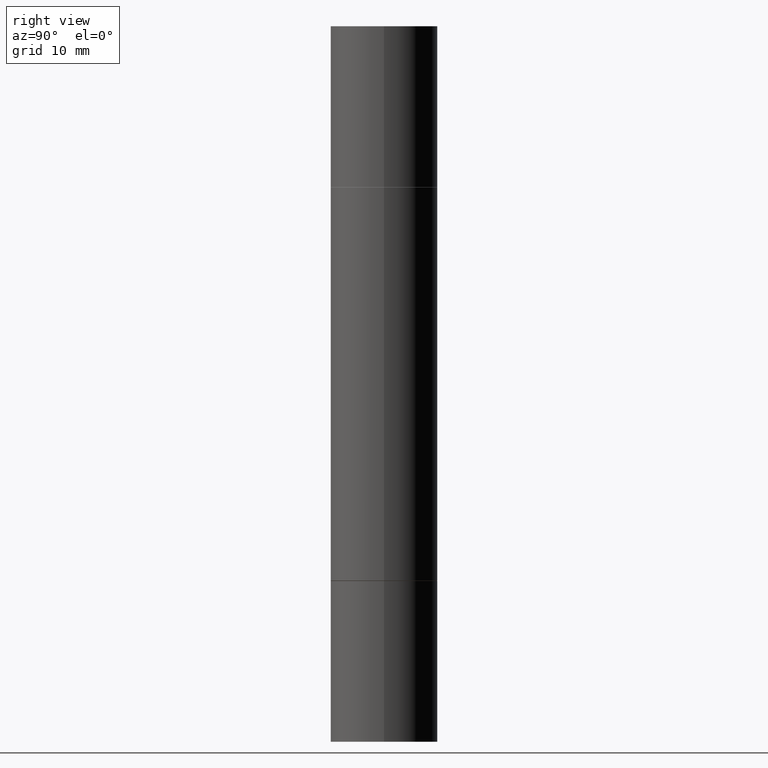
[diagram: clean part render]
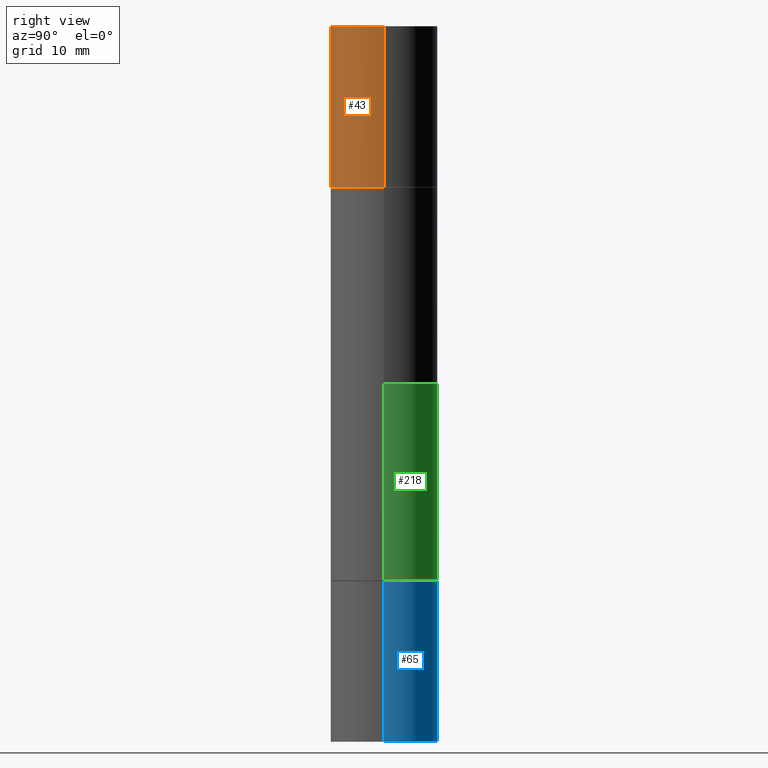
[diagram: same view with three faces highlighted in distinct colors, each labeled with its STEP entity id]
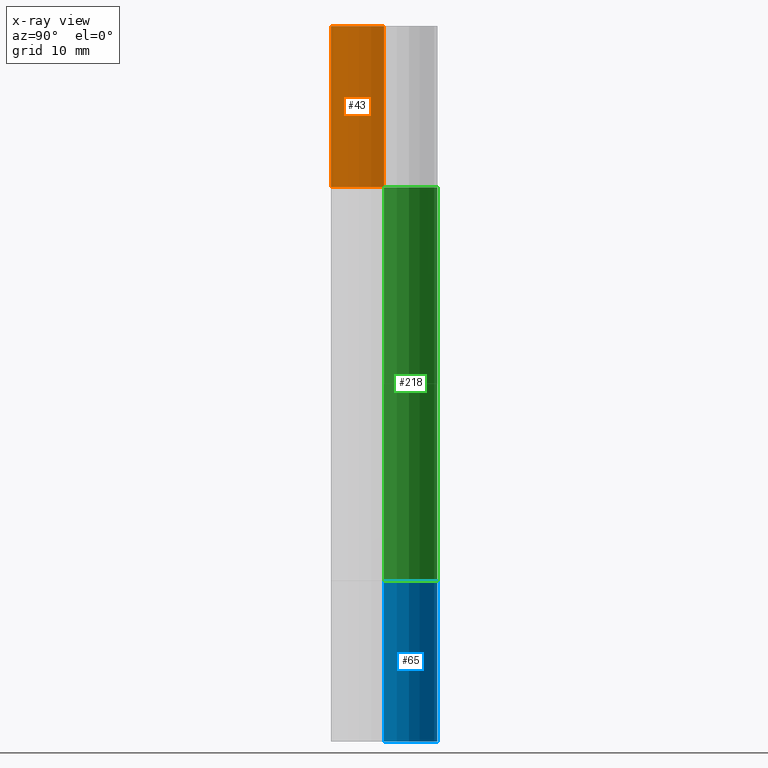
[diagram: x-ray of the same camera — body ghosted, the three highlighted faces saturated]
A machine part, right view with three faces highlighted in distinct colors.
The next image is the same camera in x-ray (body ghosted, the three faces saturated) — at least one of them is partly hidden behind the body in this view.
Their STEP definitions:

[orange] entity #43 — the highlighted cylindrical surface (partial cylindrical patch) has radius 4.7625 mm, axis along (-0, -0, -1).
#22 = VERTEX_POINT ( 'NONE', #559 ) ;
#43 = ADVANCED_FACE ( 'NONE', ( #87 ), #304, .T. ) ;
#46 = CARTESIAN_POINT ( 'NONE',  ( -0.1875000000000000278, 3.066025098218802702E-16, 5.463695987328561936E-16 ) ) ;
#63 = ORIENTED_EDGE ( 'NONE', *, *, #270, .F. ) ;
#87 = FACE_OUTER_BOUND ( 'NONE', #260, .T. ) ;
#95 = ORIENTED_EDGE ( 'NONE', *, *, #601, .F. ) ;
#120 = ORIENTED_EDGE ( 'NONE', *, *, #181, .T. ) ;
#124 = CARTESIAN_POINT ( 'NONE',  ( 6.113672015462842613E-29, 1.761340885760521790E-18, 5.463695987328526437E-16 ) ) ;
#135 = DIRECTION ( 'NONE',  ( 1.000000000000000000, -6.982962677686266711E-15, 0.000000000000000000 ) ) ;
#160 = DIRECTION ( 'NONE',  ( 1.000000000000000000, -6.982962677686265922E-15, 0.000000000000000000 ) ) ;
#163 = VECTOR ( 'NONE', #507, 39.37007874015748143 ) ;
#181 = EDGE_CURVE ( 'NONE', #308, #623, #532, .T. ) ;
#224 = AXIS2_PLACEMENT_3D ( 'NONE', #124, #487, #160 ) ;
#227 = CARTESIAN_POINT ( 'NONE',  ( -0.1875000000000000278, -7.444121313411457895E-15, -2.499999999999999556 ) ) ;
#229 = CARTESIAN_POINT ( 'NONE',  ( 0.1875000000000000278, -3.270548572472500038E-15, -0.5619999999999996110 ) ) ;
#260 = EDGE_LOOP ( 'NONE', ( #95, #120, #413, #63 ) ) ;
#263 = CARTESIAN_POINT ( 'NONE',  ( 4.739318546386794397E-29, -1.961243070406324635E-15, -0.5619999999999996110 ) ) ;
#270 = EDGE_CURVE ( 'NONE', #22, #619, #301, .T. ) ;
#289 = CARTESIAN_POINT ( 'NONE',  ( 0.1875000000000000278, -1.003977019005979665E-14, -2.499999999999999556 ) ) ;
#292 = CIRCLE ( 'NONE', #385, 0.1875000000000000278 ) ;
#301 = LINE ( 'NONE', #289, #163 ) ;
#304 = CYLINDRICAL_SURFACE ( 'NONE', #632, 0.1875000000000000278 ) ;
#308 = VERTEX_POINT ( 'NONE', #46 ) ;
#326 = DIRECTION ( 'NONE',  ( -2.445468806185136877E-29, -3.492890411551753071E-15, -1.000000000000000000 ) ) ;
#385 = AXIS2_PLACEMENT_3D ( 'NONE', #263, #468, #387 ) ;
#387 = DIRECTION ( 'NONE',  ( 1.000000000000000000, -6.982962677686266711E-15, 0.000000000000000000 ) ) ;
#413 = ORIENTED_EDGE ( 'NONE', *, *, #553, .T. ) ;
#431 = VECTOR ( 'NONE', #326, 39.37007874015748143 ) ;
#468 = DIRECTION ( 'NONE',  ( 2.445468806185136597E-29, 3.492890411551752677E-15, 1.000000000000000000 ) ) ;
#470 = CIRCLE ( 'NONE', #224, 0.1875000000000000278 ) ;
#487 = DIRECTION ( 'NONE',  ( 2.445468806185136597E-29, 3.492890411551752677E-15, 1.000000000000000000 ) ) ;
#498 = CARTESIAN_POINT ( 'NONE',  ( -0.1875000000000000278, 3.066025098218802702E-16, -0.5619999999999996110 ) ) ;
#507 = DIRECTION ( 'NONE',  ( -2.445468806185136877E-29, -3.492890411551753071E-15, -1.000000000000000000 ) ) ;
#512 = CARTESIAN_POINT ( 'NONE',  ( 0.000000000000000000, -8.730464687993621641E-15, -2.499999999999999556 ) ) ;
#532 = LINE ( 'NONE', #227, #431 ) ;
#553 = EDGE_CURVE ( 'NONE', #623, #619, #292, .T. ) ;
#559 = CARTESIAN_POINT ( 'NONE',  ( 0.1875000000000000278, -1.307544161180414563E-15, 5.463695987328526437E-16 ) ) ;
#599 = DIRECTION ( 'NONE',  ( -2.445468806185136597E-29, -3.492890411551752677E-15, -1.000000000000000000 ) ) ;
#601 = EDGE_CURVE ( 'NONE', #308, #22, #470, .T. ) ;
#619 = VERTEX_POINT ( 'NONE', #229 ) ;
#623 = VERTEX_POINT ( 'NONE', #498 ) ;
#632 = AXIS2_PLACEMENT_3D ( 'NONE', #512, #599, #135 ) ;

[blue] entity #65 — the highlighted cylindrical surface (partial cylindrical patch) has radius 4.7625 mm, axis along (-0, 0, 1).
#1 = DIRECTION ( 'NONE',  ( -2.445468806185136877E-29, 3.491481338843145188E-15, 1.000000000000000000 ) ) ;
#24 = DIRECTION ( 'NONE',  ( 1.000000000000000000, -6.982962677686265922E-15, 4.876176775795935793E-29 ) ) ;
#37 = CARTESIAN_POINT ( 'NONE',  ( -0.1875000000000000278, -6.415329461342752645E-15, -1.937999999999999945 ) ) ;
#38 = DIRECTION ( 'NONE',  ( 1.000000000000000000, -6.982962677686266711E-15, 0.000000000000000000 ) ) ;
#44 = FACE_OUTER_BOUND ( 'NONE', #228, .T. ) ;
#62 = EDGE_CURVE ( 'NONE', #161, #648, #591, .T. ) ;
#65 = ADVANCED_FACE ( 'NONE', ( #44 ), #336, .T. ) ;
#68 = VECTOR ( 'NONE', #1, 39.37007874015748143 ) ;
#100 = LINE ( 'NONE', #107, #169 ) ;
#107 = CARTESIAN_POINT ( 'NONE',  ( -0.1875000000000000278, 1.332267629550188046E-15, -9.223003294227947991E-30 ) ) ;
#110 = CARTESIAN_POINT ( 'NONE',  ( 0.1875000000000000278, -1.309305502066175008E-15, 9.142831454617381013E-30 ) ) ;
#161 = VERTEX_POINT ( 'NONE', #206 ) ;
#169 = VECTOR ( 'NONE', #317, 39.37007874015748143 ) ;
#173 = CARTESIAN_POINT ( 'NONE',  ( 6.113672015462842613E-29, -8.728703347107864943E-15, -2.500000000000000000 ) ) ;
#195 = DIRECTION ( 'NONE',  ( -2.445468806185136597E-29, 3.491481338843145583E-15, 1.000000000000000000 ) ) ;
#206 = CARTESIAN_POINT ( 'NONE',  ( 0.1875000000000000278, -8.075796336744191053E-15, -1.937999999999999945 ) ) ;
#228 = EDGE_LOOP ( 'NONE', ( #441, #627, #574, #258 ) ) ;
#242 = EDGE_CURVE ( 'NONE', #514, #593, #539, .T. ) ;
#253 = DIRECTION ( 'NONE',  ( -2.445468806185136597E-29, 3.491481338843145583E-15, 1.000000000000000000 ) ) ;
#258 = ORIENTED_EDGE ( 'NONE', *, *, #401, .F. ) ;
#312 = LINE ( 'NONE', #110, #68 ) ;
#317 = DIRECTION ( 'NONE',  ( -2.445468806185136877E-29, 3.491481338843145188E-15, 1.000000000000000000 ) ) ;
#327 = AXIS2_PLACEMENT_3D ( 'NONE', #506, #195, #38 ) ;
#336 = CYLINDRICAL_SURFACE ( 'NONE', #611, 0.1875000000000000278 ) ;
#338 = EDGE_CURVE ( 'NONE', #593, #648, #100, .T. ) ;
#358 = CARTESIAN_POINT ( 'NONE',  ( 0.000000000000000000, 0.000000000000000000, 0.000000000000000000 ) ) ;
#401 = EDGE_CURVE ( 'NONE', #514, #161, #312, .T. ) ;
#441 = ORIENTED_EDGE ( 'NONE', *, *, #242, .T. ) ;
#506 = CARTESIAN_POINT ( 'NONE',  ( 4.739318546386794397E-29, -6.766490834678016045E-15, -1.937999999999999945 ) ) ;
#514 = VERTEX_POINT ( 'NONE', #576 ) ;
#539 = CIRCLE ( 'NONE', #550, 0.1875000000000000278 ) ;
#550 = AXIS2_PLACEMENT_3D ( 'NONE', #173, #253, #560 ) ;
#560 = DIRECTION ( 'NONE',  ( 1.000000000000000000, -6.982962677686266711E-15, 0.000000000000000000 ) ) ;
#562 = DIRECTION ( 'NONE',  ( -2.445468806185136597E-29, 3.491481338843145583E-15, 1.000000000000000000 ) ) ;
#574 = ORIENTED_EDGE ( 'NONE', *, *, #62, .F. ) ;
#576 = CARTESIAN_POINT ( 'NONE',  ( 0.1875000000000000278, -1.003800884917403995E-14, -2.500000000000000000 ) ) ;
#591 = CIRCLE ( 'NONE', #327, 0.1875000000000000278 ) ;
#593 = VERTEX_POINT ( 'NONE', #607 ) ;
#607 = CARTESIAN_POINT ( 'NONE',  ( -0.1875000000000000278, -6.415329461342752645E-15, -2.500000000000000000 ) ) ;
#611 = AXIS2_PLACEMENT_3D ( 'NONE', #358, #562, #24 ) ;
#627 = ORIENTED_EDGE ( 'NONE', *, *, #338, .T. ) ;
#648 = VERTEX_POINT ( 'NONE', #37 ) ;

[green] entity #218 — the highlighted cylindrical surface (partial cylindrical patch) has radius 4.7625 mm, axis along (-0, -0, -1).
#8 = DIRECTION ( 'NONE',  ( 1.000000000000000000, -6.982962677686266711E-15, 0.000000000000000000 ) ) ;
#47 = CARTESIAN_POINT ( 'NONE',  ( -0.1875000000000000278, -6.783925862357143136E-16, -0.5629999999999997229 ) ) ;
#73 = EDGE_CURVE ( 'NONE', #275, #635, #200, .T. ) ;
#80 = DIRECTION ( 'NONE',  ( 1.000000000000000000, -6.982962677686270655E-15, 0.000000000000000000 ) ) ;
#132 = CARTESIAN_POINT ( 'NONE',  ( 0.000000000000000000, -8.730464687993621641E-15, -2.499999999999999556 ) ) ;
#177 = LINE ( 'NONE', #658, #674 ) ;
#196 = CARTESIAN_POINT ( 'NONE',  ( 0.1875000000000000278, -8.072304855405348046E-15, -1.936999999999999833 ) ) ;
#199 = ORIENTED_EDGE ( 'NONE', *, *, #643, .T. ) ;
#200 = CIRCLE ( 'NONE', #565, 0.1875000000000000278 ) ;
#214 = EDGE_CURVE ( 'NONE', #411, #499, #291, .T. ) ;
#218 = ADVANCED_FACE ( 'NONE', ( #222 ), #640, .T. ) ;
#222 = FACE_OUTER_BOUND ( 'NONE', #369, .T. ) ;
#236 = DIRECTION ( 'NONE',  ( -2.445468806185136597E-29, 3.491481338843145583E-15, 1.000000000000000000 ) ) ;
#243 = CARTESIAN_POINT ( 'NONE',  ( -0.1874999999999999722, -3.078008298971767937E-15, -1.936999999999999833 ) ) ;
#254 = ORIENTED_EDGE ( 'NONE', *, *, #214, .F. ) ;
#271 = LINE ( 'NONE', #473, #361 ) ;
#272 = ORIENTED_EDGE ( 'NONE', *, *, #446, .F. ) ;
#275 = VERTEX_POINT ( 'NONE', #196 ) ;
#291 = CIRCLE ( 'NONE', #392, 0.1875000000000000278 ) ;
#329 = AXIS2_PLACEMENT_3D ( 'NONE', #132, #341, #80 ) ;
#341 = DIRECTION ( 'NONE',  ( -2.445468806185136597E-29, -3.492890411551752677E-15, -1.000000000000000000 ) ) ;
#351 = DIRECTION ( 'NONE',  ( 1.000000000000000000, -6.982962677686266711E-15, 0.000000000000000000 ) ) ;
#361 = VECTOR ( 'NONE', #581, 39.37007874015748143 ) ;
#369 = EDGE_LOOP ( 'NONE', ( #272, #254, #199, #383 ) ) ;
#383 = ORIENTED_EDGE ( 'NONE', *, *, #73, .T. ) ;
#392 = AXIS2_PLACEMENT_3D ( 'NONE', #480, #642, #8 ) ;
#396 = DIRECTION ( 'NONE',  ( -2.445468806185136877E-29, -3.492890411551753071E-15, -1.000000000000000000 ) ) ;
#411 = VERTEX_POINT ( 'NONE', #463 ) ;
#446 = EDGE_CURVE ( 'NONE', #499, #635, #271, .T. ) ;
#463 = CARTESIAN_POINT ( 'NONE',  ( 0.1875000000000000278, -3.274041462884052574E-15, -0.5629999999999997229 ) ) ;
#473 = CARTESIAN_POINT ( 'NONE',  ( -0.1874999999999999167, -7.444121313411459473E-15, -2.499999999999999556 ) ) ;
#480 = CARTESIAN_POINT ( 'NONE',  ( 4.736873077580609355E-29, -1.964735960817877172E-15, -0.5629999999999997229 ) ) ;
#493 = CARTESIAN_POINT ( 'NONE',  ( 4.736873077580609355E-29, -6.762999353339172249E-15, -1.936999999999999833 ) ) ;
#499 = VERTEX_POINT ( 'NONE', #47 ) ;
#565 = AXIS2_PLACEMENT_3D ( 'NONE', #493, #236, #351 ) ;
#581 = DIRECTION ( 'NONE',  ( -2.445468806185136877E-29, -3.492890411551753071E-15, -1.000000000000000000 ) ) ;
#635 = VERTEX_POINT ( 'NONE', #243 ) ;
#640 = CYLINDRICAL_SURFACE ( 'NONE', #329, 0.1874999999999999167 ) ;
#642 = DIRECTION ( 'NONE',  ( 2.445468806185136597E-29, 3.492890411551752677E-15, 1.000000000000000000 ) ) ;
#643 = EDGE_CURVE ( 'NONE', #411, #275, #177, .T. ) ;
#658 = CARTESIAN_POINT ( 'NONE',  ( 0.1874999999999999167, -1.003977019005979665E-14, -2.499999999999999556 ) ) ;
#674 = VECTOR ( 'NONE', #396, 39.37007874015748143 ) ;